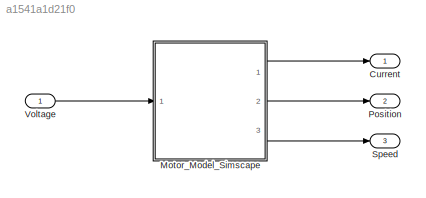
MODEL slx_a1541a1d21f0
KIND model
CONFIG AbsTol = auto
CONFIG FixedStep = auto
CONFIG MaxStep = auto
CONFIG MinStep = auto
CONFIG RelTol = 1e-3
CONFIG SampleTimeConstraint = Unconstrained
CONFIG Solver = VariableStepAuto
CONFIG SolverMode = Auto
CONFIG SolverName = VariableStepAuto
CONFIG StartTime = 0.0
CONFIG StopTime = 10.0
BLOCK [Outport] Current
  IconDisplay = Port number
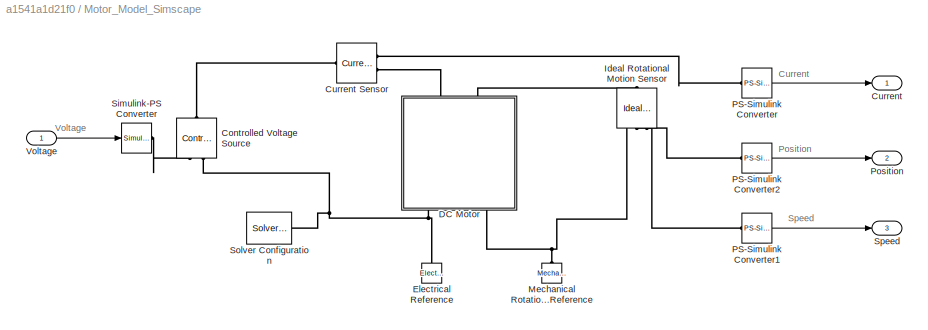
BLOCK [SubSystem] Motor_Model_Simscape
  Ports = [1, 3]
  RequestExecContextInheritance = off
  Variant = off
BLOCK [Reference] Motor_Model_Simscape/Controlled Voltage Source  REF=fl_lib/Electrical/Electrical Sources/Controlled Voltage
Source
  Ports = [0, 0, 0, 0, 0, 1, 2]
  SourceBlock = fl_lib/Electrical/Electrical Sources/Controlled Voltage\nSource
  SourceType = Controlled Voltage\nSource
BLOCK [Outport] Motor_Model_Simscape/Current
  IconDisplay = Port number
BLOCK [Reference] Motor_Model_Simscape/Current Sensor  REF=fl_lib/Electrical/Electrical Sensors/Current Sensor
  Ports = [0, 0, 0, 0, 0, 1, 2]
  SourceBlock = fl_lib/Electrical/Electrical Sensors/Current Sensor
  SourceType = Current Sensor
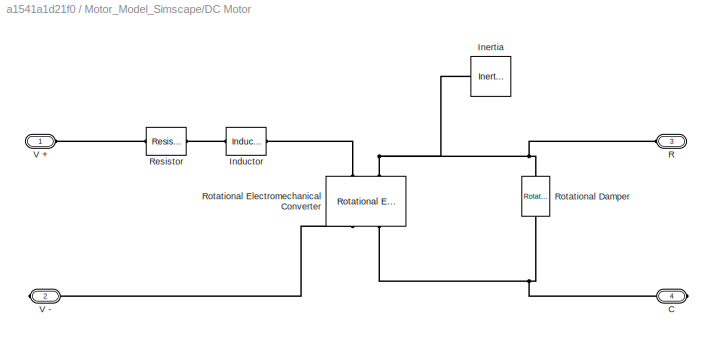
BLOCK [SubSystem] Motor_Model_Simscape/DC Motor 
  Ports = [0, 0, 0, 0, 0, 2, 2]
  RequestExecContextInheritance = off
  Variant = off
BLOCK [PMIOPort] Motor_Model_Simscape/DC Motor /C 
  Port = 4
  Side = Right
BLOCK [Reference] Motor_Model_Simscape/DC Motor /Inductor  REF=fl_lib/Electrical/Electrical Elements/Inductor
  Ports = [0, 0, 0, 0, 0, 1, 1]
  SourceBlock = fl_lib/Electrical/Electrical Elements/Inductor
  SourceType = Inductor
BLOCK [Reference] Motor_Model_Simscape/DC Motor /Inertia  REF=fl_lib/Mechanical/Rotational Elements/Inertia
  Ports = [0, 0, 0, 0, 0, 1]
  SourceBlock = fl_lib/Mechanical/Rotational Elements/Inertia
  SourceType = Inertia
BLOCK [PMIOPort] Motor_Model_Simscape/DC Motor /R 
  Port = 3
  Side = Left
BLOCK [Reference] Motor_Model_Simscape/DC Motor /Resistor  REF=fl_lib/Electrical/Electrical Elements/Resistor
  Ports = [0, 0, 0, 0, 0, 1, 1]
  SourceBlock = fl_lib/Electrical/Electrical Elements/Resistor
  SourceType = Resistor
BLOCK [Reference] Motor_Model_Simscape/DC Motor /Rotational Damper  REF=fl_lib/Mechanical/Rotational Elements/Rotational Damper
  Ports = [0, 0, 0, 0, 0, 1, 1]
  SourceBlock = fl_lib/Mechanical/Rotational Elements/Rotational Damper
  SourceType = Rotational Damper
BLOCK [Reference] Motor_Model_Simscape/DC Motor /Rotational Electromechanical Converter  REF=fl_lib/Electrical/Electrical Elements/Rotational
Electromechanical
Converter
  Ports = [0, 0, 0, 0, 0, 2, 2]
  SourceBlock = fl_lib/Electrical/Electrical Elements/Rotational\nElectromechanical\nConverter
  SourceType = Rotational\nElectromechanical\nConverter
BLOCK [PMIOPort] Motor_Model_Simscape/DC Motor /V +
  Port = 1
  Side = Left
BLOCK [PMIOPort] Motor_Model_Simscape/DC Motor /V -
  Port = 2
  Side = Right
BLOCK [Reference] Motor_Model_Simscape/Electrical Reference  REF=fl_lib/Electrical/Electrical Elements/Electrical Reference
  Ports = [0, 0, 0, 0, 0, 1]
  SourceBlock = fl_lib/Electrical/Electrical Elements/Electrical Reference
  SourceType = Electrical Reference
BLOCK [Reference] Motor_Model_Simscape/Ideal Rotational Motion Sensor  REF=fl_lib/Mechanical/Mechanical Sensors/Ideal Rotational
Motion Sensor
  Ports = [0, 0, 0, 0, 0, 1, 3]
  SourceBlock = fl_lib/Mechanical/Mechanical Sensors/Ideal Rotational\nMotion Sensor
  SourceType = Ideal Rotational\nMotion Sensor
BLOCK [Reference] Motor_Model_Simscape/Mechanical Rotational Reference  REF=fl_lib/Mechanical/Rotational Elements/Mechanical
Rotational Reference
  Ports = [0, 0, 0, 0, 0, 1]
  SourceBlock = fl_lib/Mechanical/Rotational Elements/Mechanical\nRotational Reference
  SourceType = Mechanical\nRotational Reference
BLOCK [Reference] Motor_Model_Simscape/PS-Simulink Converter  REF=nesl_utility/PS-Simulink
Converter
  Ports = [0, 1, 0, 0, 0, 1]
  SourceBlock = nesl_utility/PS-Simulink\nConverter
  SourceType = PS-Simulink\nConverter
BLOCK [Reference] Motor_Model_Simscape/PS-Simulink Converter1  REF=nesl_utility/PS-Simulink
Converter
  Ports = [0, 1, 0, 0, 0, 1]
  SourceBlock = nesl_utility/PS-Simulink\nConverter
  SourceType = PS-Simulink\nConverter
BLOCK [Reference] Motor_Model_Simscape/PS-Simulink Converter2  REF=nesl_utility/PS-Simulink
Converter
  Ports = [0, 1, 0, 0, 0, 1]
  SourceBlock = nesl_utility/PS-Simulink\nConverter
  SourceType = PS-Simulink\nConverter
BLOCK [Outport] Motor_Model_Simscape/Position
  IconDisplay = Port number
  Port = 2
BLOCK [Reference] Motor_Model_Simscape/Simulink-PS Converter  REF=nesl_utility/Simulink-PS
Converter
  Ports = [1, 0, 0, 0, 0, 0, 1]
  SourceBlock = nesl_utility/Simulink-PS\nConverter
  SourceType = Simulink-PS\nConverter
BLOCK [Reference] Motor_Model_Simscape/Solver Configuration  REF=nesl_utility/Solver
Configuration
  Ports = [0, 0, 0, 0, 0, 0, 1]
  SourceBlock = nesl_utility/Solver\nConfiguration
  SourceType = Solver\nConfiguration
BLOCK [Outport] Motor_Model_Simscape/Speed
  IconDisplay = Port number
  Port = 3
BLOCK [Inport] Motor_Model_Simscape/Voltage 
  IconDisplay = Port number
BLOCK [Outport] Position
  IconDisplay = Port number
  Port = 2
BLOCK [Outport] Speed
  IconDisplay = Port number
  Port = 3
BLOCK [Inport] Voltage
  IconDisplay = Port number
ANNOTATION Motor_Model_Simscape: Current
ANNOTATION Motor_Model_Simscape: Position
ANNOTATION Motor_Model_Simscape: Speed
ANNOTATION Motor_Model_Simscape: Voltage
LINE Motor_Model_Simscape/PS-Simulink Converter1:1 -> Motor_Model_Simscape/Speed:1
LINE Motor_Model_Simscape/PS-Simulink Converter2:1 -> Motor_Model_Simscape/Position:1
LINE Motor_Model_Simscape/PS-Simulink Converter:1 -> Motor_Model_Simscape/Current:1
LINE Motor_Model_Simscape/Voltage :1 -> Motor_Model_Simscape/Simulink-PS Converter:1
LINE Motor_Model_Simscape:1 -> Current:1
LINE Motor_Model_Simscape:2 -> Position:1
LINE Motor_Model_Simscape:3 -> Speed:1
LINE Voltage:1 -> Motor_Model_Simscape:1
PLINE Motor_Model_Simscape/Controlled Voltage Source:LConn1 -- Motor_Model_Simscape/Current Sensor:LConn1
PLINE Motor_Model_Simscape/Controlled Voltage Source:RConn1 -- Motor_Model_Simscape/Simulink-PS Converter:RConn1
PNET net1: Motor_Model_Simscape/Controlled Voltage Source:RConn2 -- Motor_Model_Simscape/DC Motor :RConn1 -- Motor_Model_Simscape/Electrical Reference:LConn1 -- Motor_Model_Simscape/Solver Configuration:RConn1
PLINE Motor_Model_Simscape/Current Sensor:RConn1 -- Motor_Model_Simscape/PS-Simulink Converter:LConn1
PLINE Motor_Model_Simscape/Current Sensor:RConn2 -- Motor_Model_Simscape/DC Motor :LConn1
PNET net2: Motor_Model_Simscape/DC Motor /C :RConn1 -- Motor_Model_Simscape/DC Motor /Rotational Damper:LConn1 -- Motor_Model_Simscape/DC Motor /Rotational Electromechanical Converter:RConn2
PLINE Motor_Model_Simscape/DC Motor /Inductor:LConn1 -- Motor_Model_Simscape/DC Motor /Resistor:RConn1
PLINE Motor_Model_Simscape/DC Motor /Inductor:RConn1 -- Motor_Model_Simscape/DC Motor /Rotational Electromechanical Converter:LConn1
PNET net3: Motor_Model_Simscape/DC Motor /Inertia:LConn1 -- Motor_Model_Simscape/DC Motor /R :RConn1 -- Motor_Model_Simscape/DC Motor /Rotational Damper:RConn1 -- Motor_Model_Simscape/DC Motor /Rotational Electromechanical Converter:LConn2
PLINE Motor_Model_Simscape/DC Motor /Resistor:LConn1 -- Motor_Model_Simscape/DC Motor /V +:RConn1
PLINE Motor_Model_Simscape/DC Motor /Rotational Electromechanical Converter:RConn1 -- Motor_Model_Simscape/DC Motor /V -:RConn1
PLINE Motor_Model_Simscape/DC Motor :LConn2 -- Motor_Model_Simscape/Ideal Rotational Motion Sensor:LConn1
PNET net4: Motor_Model_Simscape/DC Motor :RConn2 -- Motor_Model_Simscape/Ideal Rotational Motion Sensor:RConn1 -- Motor_Model_Simscape/Mechanical Rotational Reference:LConn1
PLINE Motor_Model_Simscape/Ideal Rotational Motion Sensor:RConn2 -- Motor_Model_Simscape/PS-Simulink Converter1:LConn1
PLINE Motor_Model_Simscape/Ideal Rotational Motion Sensor:RConn3 -- Motor_Model_Simscape/PS-Simulink Converter2:LConn1
note: PNET lines group multi-terminal physical nets as a canonical sorted terminal list (undirected conserving connections); 2-terminal nets keep the pairwise PLINE form
